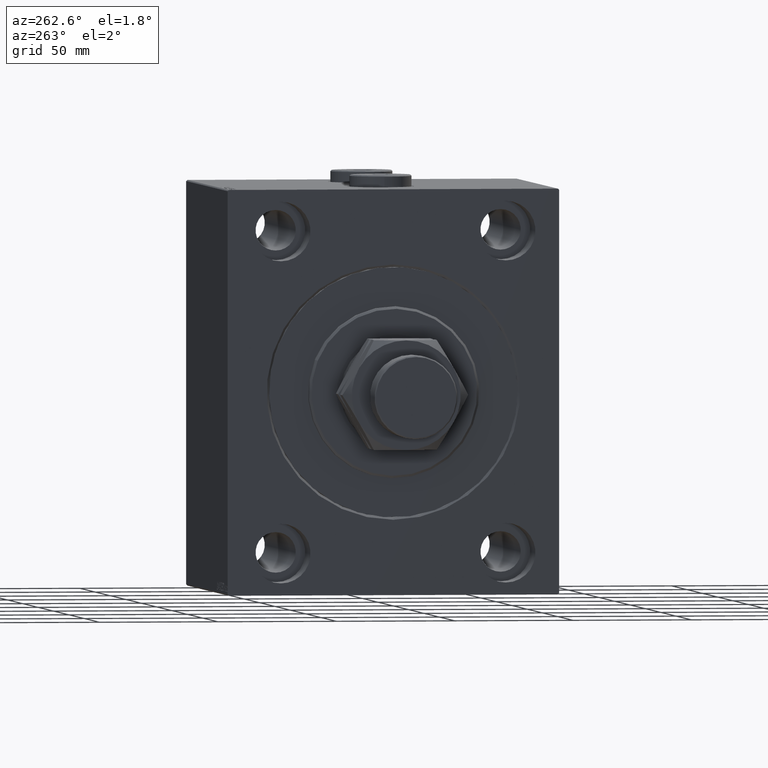
[diagram: clean part render]
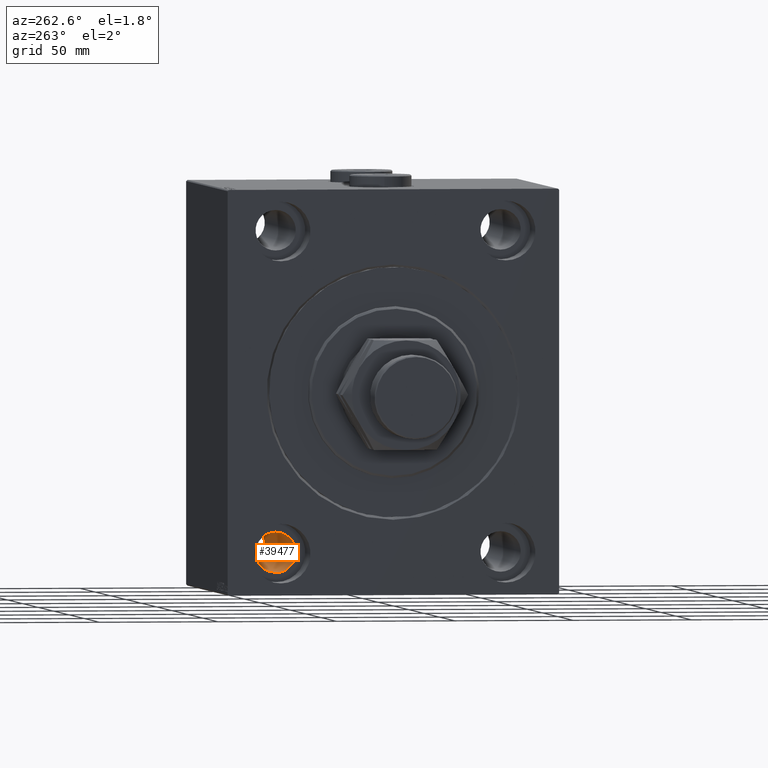
[diagram: same view with one face highlighted and labeled with its STEP entity id]
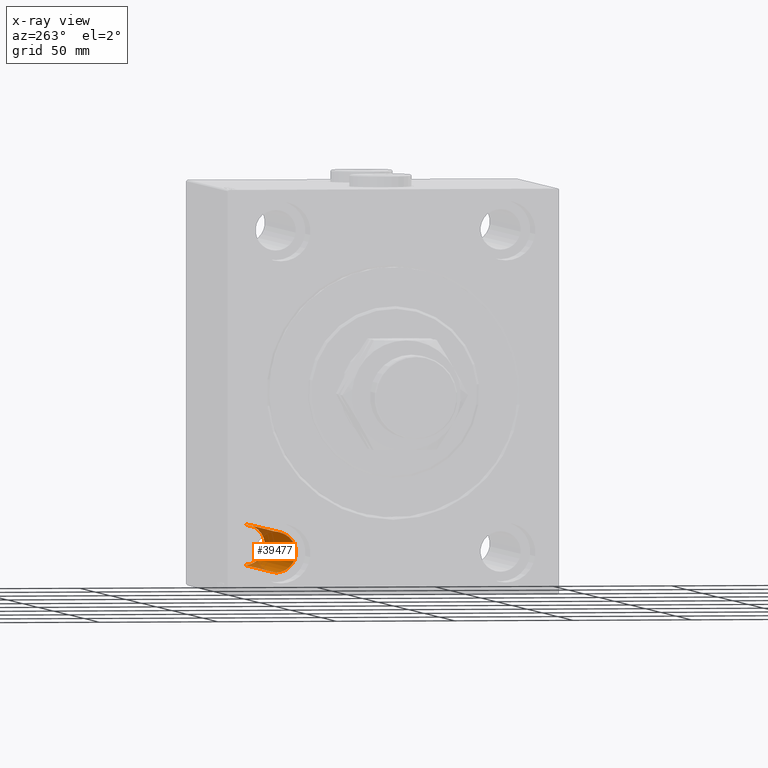
[diagram: x-ray of the same camera — body ghosted, the highlighted face saturated]
A machine part, auxiliary view. The second image highlights one B-rep face of the part: STEP entity #39477.
The next image is the same camera in x-ray: the body ghosted, the highlighted face saturated — about 11% of this face is hidden behind the body in this view.
In plain terms, the highlighted cylindrical surface (edge-blend (fillet) strip) has radius 8.5 mm, axis along (-1, -0, -0).
Its self-contained STEP definition (entity closure, byte-faithful):
#61 = CARTESIAN_POINT ( 'NONE',  ( 17.00000000000000000, 47.50000000000000711, -76.00000000000000000 ) ) ;
#1536 = VECTOR ( 'NONE', #34596, 1000.000000000000000 ) ;
#2401 = EDGE_CURVE ( 'NONE', #17200, #17887, #23441, .T. ) ;
#3147 = DIRECTION ( 'NONE',  ( -1.000000000000000000, -0.000000000000000000, -0.000000000000000000 ) ) ;
#3156 = AXIS2_PLACEMENT_3D ( 'NONE', #39163, #3147, #13557 ) ;
#3461 = AXIS2_PLACEMENT_3D ( 'NONE', #3888, #21863, #3652 ) ;
#3621 = CYLINDRICAL_SURFACE ( 'NONE', #3156, 8.499999999999992895 ) ;
#3652 = DIRECTION ( 'NONE',  ( 0.000000000000000000, 0.000000000000000000, 1.000000000000000000 ) ) ;
#3888 = CARTESIAN_POINT ( 'NONE',  ( 17.00000000000000000, 47.50000000000000711, -67.50000000000000000 ) ) ;
#5721 = VECTOR ( 'NONE', #45387, 1000.000000000000000 ) ;
#6080 = DIRECTION ( 'NONE',  ( 0.000000000000000000, 0.000000000000000000, -1.000000000000000000 ) ) ;
#6960 = ORIENTED_EDGE ( 'NONE', *, *, #26775, .F. ) ;
#8767 = CIRCLE ( 'NONE', #3461, 8.499999999999992895 ) ;
#11346 = CARTESIAN_POINT ( 'NONE',  ( 17.00000000000000000, 47.50000000000000711, -59.00000000000001421 ) ) ;
#12965 = VERTEX_POINT ( 'NONE', #11346 ) ;
#13557 = DIRECTION ( 'NONE',  ( 0.000000000000000000, 0.000000000000000000, 1.000000000000000000 ) ) ;
#13983 = ORIENTED_EDGE ( 'NONE', *, *, #35579, .F. ) ;
#15536 = LINE ( 'NONE', #29987, #5721 ) ;
#16195 = CIRCLE ( 'NONE', #23761, 8.499999999999992895 ) ;
#17200 = VERTEX_POINT ( 'NONE', #18163 ) ;
#17576 = FACE_OUTER_BOUND ( 'NONE', #33511, .T. ) ;
#17887 = VERTEX_POINT ( 'NONE', #61 ) ;
#18163 = CARTESIAN_POINT ( 'NONE',  ( 118.0000000000000142, 47.50000000000000711, -76.00000000000000000 ) ) ;
#21203 = DIRECTION ( 'NONE',  ( -1.000000000000000000, -0.000000000000000000, -0.000000000000000000 ) ) ;
#21863 = DIRECTION ( 'NONE',  ( -1.000000000000000000, 0.000000000000000000, 0.000000000000000000 ) ) ;
#23441 = LINE ( 'NONE', #23675, #1536 ) ;
#23675 = CARTESIAN_POINT ( 'NONE',  ( 135.0000000000000000, 47.50000000000000711, -76.00000000000000000 ) ) ;
#23761 = AXIS2_PLACEMENT_3D ( 'NONE', #38546, #21203, #6080 ) ;
#26775 = EDGE_CURVE ( 'NONE', #17200, #39791, #16195, .T. ) ;
#27300 = ORIENTED_EDGE ( 'NONE', *, *, #35809, .T. ) ;
#27462 = ORIENTED_EDGE ( 'NONE', *, *, #2401, .T. ) ;
#28850 = CARTESIAN_POINT ( 'NONE',  ( 118.0000000000000142, 47.50000000000000711, -59.00000000000001421 ) ) ;
#29987 = CARTESIAN_POINT ( 'NONE',  ( 135.0000000000000000, 47.50000000000000711, -59.00000000000001421 ) ) ;
#33511 = EDGE_LOOP ( 'NONE', ( #6960, #27462, #27300, #13983 ) ) ;
#34596 = DIRECTION ( 'NONE',  ( -1.000000000000000000, -0.000000000000000000, -0.000000000000000000 ) ) ;
#35579 = EDGE_CURVE ( 'NONE', #39791, #12965, #15536, .T. ) ;
#35809 = EDGE_CURVE ( 'NONE', #17887, #12965, #8767, .T. ) ;
#38546 = CARTESIAN_POINT ( 'NONE',  ( 118.0000000000000142, 47.50000000000000711, -67.50000000000000000 ) ) ;
#39163 = CARTESIAN_POINT ( 'NONE',  ( 135.0000000000000000, 47.50000000000000711, -67.50000000000000000 ) ) ;
#39477 = ADVANCED_FACE ( 'NONE', ( #17576 ), #3621, .F. ) ;
#39791 = VERTEX_POINT ( 'NONE', #28850 ) ;
#45387 = DIRECTION ( 'NONE',  ( -1.000000000000000000, -0.000000000000000000, -0.000000000000000000 ) ) ;